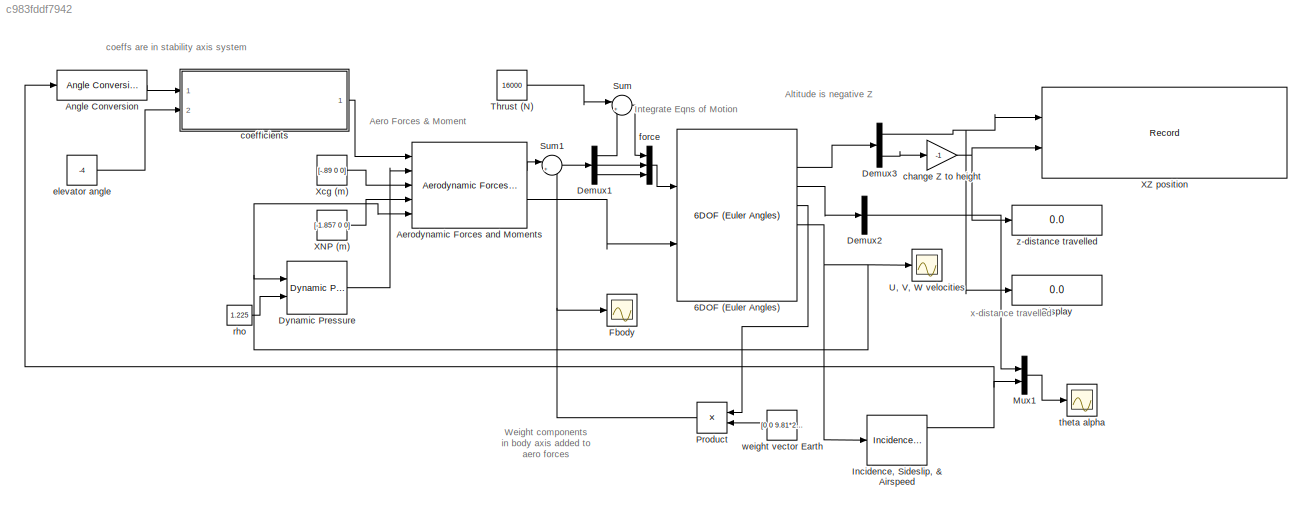
MODEL slx_c983fddf7942
KIND model
CONFIG AbsTol = auto
CONFIG EnableMultiTasking = on
CONFIG FixedStep = auto
CONFIG MaxStep = auto
CONFIG MinStep = auto
CONFIG RelTol = 1e-3
CONFIG SampleTimeConstraint = Unconstrained
CONFIG SolverName = VariableStepAuto
CONFIG StartTime = 0.0
CONFIG StopTime = 6000
BLOCK [Reference] 6DOF (Euler Angles)  REF=shared6dof/6DOF (Euler Angles)
  Ports = [2, 8]
  SourceBlock = shared6dof/6DOF (Euler Angles)
  SourceProductBaseCode = AE,PW,DR,MT,VE
  SourceType = 6DOF EoM (Body Axis)
BLOCK [Reference] Aerodynamic Forces and Moments   REF=aerolibadyn/Aerodynamic
Forces and Moments 
  Ports = [5, 2]
  SourceBlock = aerolibadyn/Aerodynamic\nForces and Moments
  SourceProductBaseCode = AE
  SourceType = Aerodynamic Forces and Moments
BLOCK [Reference] Angle Conversion  REF=aerolibconvert2/Angle Conversion
  Ports = [1, 1]
  SourceBlock = aerolibconvert2/Angle Conversion
  SourceProductBaseCode = AE
  SourceType = Angle Conversion
BLOCK [Demux] Demux1
  Outputs = 3
  Ports = [1, 3]
BLOCK [Demux] Demux2
  Outputs = 3
  Ports = [1, 3]
BLOCK [Demux] Demux3
  Outputs = 3
  Ports = [1, 3]
BLOCK [Display] Display
  Decimation = 1
  Ports = [1]
BLOCK [Reference] Dynamic Pressure  REF=aerolibasang/Dynamic Pressure
  Ports = [2, 1]
  SourceBlock = aerolibasang/Dynamic Pressure
  SourceProductBaseCode = AE
  SourceType = Dynamic Pressure
BLOCK [Scope] Fbody
  Floating = off
  NumInputPorts = 1
  Ports = [1]
  ScopeSpecificationString = Simulink.scopes.TimeScopeBlockCfg('CurrentConfiguration', extmgr.ConfigurationSet(extmgr.Configuration('Core','General UI',true),extmgr.Configuration('Core','Source UI',true),extmgr.Configuration('Sources','WiredSimulink',true,'DataLoggingVariableName','ScopeData2'),extmgr.Configuration('Visuals','Time Domain',true,'SerializedDisplays',{struct('MinYLimReal','-206061.89471','MaxYLimReal','317370.16...<+1465ch>
BLOCK [Reference] Incidence, Sideslip, & Airspeed  REF=aerolibasang/Incidence, Sideslip,
& Airspeed
  Ports = [1, 3]
  SourceBlock = aerolibasang/Incidence, Sideslip,\n& Airspeed
  SourceProductBaseCode = AE
  SourceType = Incidence,Sideslip,&Airspeed
BLOCK [Mux] Mux1
  DisplayOption = bar
  Inputs = 2
  Ports = [2, 1]
BLOCK [Product] Product
  Multiplication = Matrix(*)
  Ports = [2, 1]
BLOCK [Sum] Sum
  Inputs = |++
  Ports = [2, 1]
BLOCK [Sum] Sum1
  Inputs = |++
  Ports = [2, 1]
BLOCK [Constant] Thrust (N)
  Value = 16000
BLOCK [Scope] U, V, W velocities
  Floating = off
  NumInputPorts = 1
  Ports = [1]
  ScopeSpecificationString = Simulink.scopes.TimeScopeBlockCfg('CurrentConfiguration', extmgr.ConfigurationSet(extmgr.Configuration('Core','General UI',true),extmgr.Configuration('Core','Source UI',true),extmgr.Configuration('Sources','WiredSimulink',true),extmgr.Configuration('Visuals','Time Domain',true,'SerializedDisplays',{struct('MinYLimReal','-22.5','MaxYLimReal','202.5','YLabelReal','','MinYLimMag','0.00000','MaxYLimMa...<+1410ch>
BLOCK [Constant] XNP (m)
  Value = [-1.857 0 0]
BLOCK [Record] XZ position 
  CompatibilityTag = XY
  FileSettingsInternal = {"entries":[{"content":{"excelSettings":{"content":{},"type":"Streamout.ExcelSettings"}},"type":"Streamout.FileSettingStorage","uuid":"b9f9cbc5-7733-443a-ba1b-f2324a4208e9"}],"packageUris":["http://schema.mathworks.com/mf0/streamout_blocks/R2020a"],"version":"1.0"}
  Layout = [1 1]
  Ports = [2]
  SignalsInternal = {"entries":[{"content":{"signals":[{"content":{"blockPath":["THEGOODONEsim/XZ position "],"channel":[],"dimensions":[1],"domain":"THEGOODONEsim/XZ position ","lineColor":"#a2142f","plots":[1],"port":1,"sid":[""],"signalID":1283,"signalName":"Demux3:1"},"type":"RecordBlkView.Signal","uuid":"c77b9682-5010-4b01-8eab-2b3616e88310"},{"content":{"blockPath":["THEGOODONEsim/XZ position "],"channel":[],"d...<+413ch>
  VisualizationBindings = {"xyplotplugin":{"info":[{"series":[{"bindingParametersList":[{"parameter":"X-Axis","signalID":1283,"signalName":"Demux3:1"},{"parameter":"Y-Axis","signalID":1287,"signalName":"change Z \nto height"}],"seriesID":55724}],"subplotID":1}]}}
  st = -1
BLOCK [Constant] Xcg (m)
  Value = [-.89 0 0]
BLOCK [Gain] change Z to height
  Gain = -1
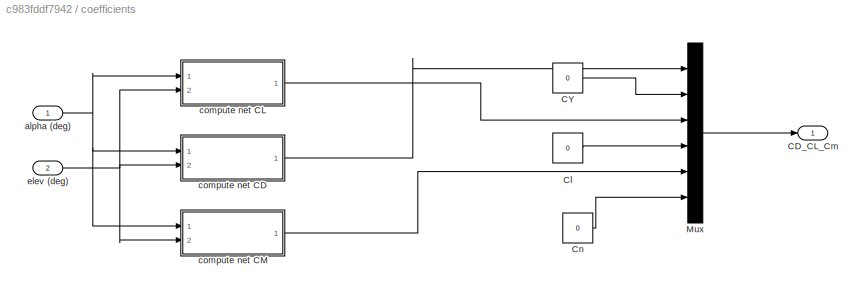
BLOCK [SubSystem] coefficients
  Ports = [2, 1]
  RequestExecContextInheritance = off
BLOCK [Outport] coefficients/CD_CL_Cm
BLOCK [Constant] coefficients/CY
  Value = 0
BLOCK [Constant] coefficients/Cl
  Value = 0
BLOCK [Constant] coefficients/Cn
  Value = 0
BLOCK [Mux] coefficients/Mux
  DisplayOption = bar
  Inputs = 6
  Ports = [6, 1]
BLOCK [Inport] coefficients/alpha (deg)
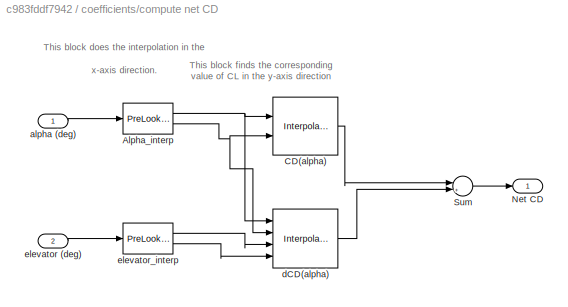
BLOCK [SubSystem] coefficients/compute net CD
  Ports = [2, 1]
  RequestExecContextInheritance = off
BLOCK [PreLookup] coefficients/compute net CD/Alpha_interp
  BeginIndexSearchUsingPreviousIndexResult = on
  BreakpointsData = alpha
  ExtrapMethod = Linear
  InputPortMap = u0
  Ports = [1, 2]
BLOCK [Interpolation_n-D] coefficients/compute net CD/CD(alpha)
  InputPortMap = u0,u1
  NumberOfTableDimensions = 1
  Ports = [2, 1]
  RemoveProtectionIndex = on
  Table = CD_datum
BLOCK [Outport] coefficients/compute net CD/Net CD
BLOCK [Sum] coefficients/compute net CD/Sum
  Inputs = |++
  Ports = [2, 1]
BLOCK [Inport] coefficients/compute net CD/alpha (deg)
BLOCK [Interpolation_n-D] coefficients/compute net CD/dCD(alpha)
  InputPortMap = u0,u1,u2,u3
  Ports = [4, 1]
  RemoveProtectionIndex = on
  Table = dCD_elev
BLOCK [Inport] coefficients/compute net CD/elevator (deg)
  Port = 2
BLOCK [PreLookup] coefficients/compute net CD/elevator_interp
  BeginIndexSearchUsingPreviousIndexResult = on
  BreakpointsData = delev
  ExtrapMethod = Linear
  InputPortMap = u0
  Ports = [1, 2]
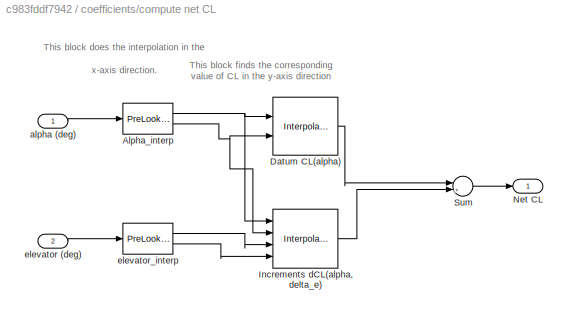
BLOCK [SubSystem] coefficients/compute net CL
  Ports = [2, 1]
  RequestExecContextInheritance = off
BLOCK [PreLookup] coefficients/compute net CL/Alpha_interp
  BeginIndexSearchUsingPreviousIndexResult = on
  BreakpointsData = alpha
  ExtrapMethod = Linear
  InputPortMap = u0
  Ports = [1, 2]
BLOCK [Interpolation_n-D] coefficients/compute net CL/Datum CL(alpha)
  InputPortMap = u0,u1
  NumberOfTableDimensions = 1
  Ports = [2, 1]
  RemoveProtectionIndex = on
  Table = CL_datum
BLOCK [Interpolation_n-D] coefficients/compute net CL/Increments dCL(alpha, delta_e)
  InputPortMap = u0,u1,u2,u3
  Ports = [4, 1]
  RemoveProtectionIndex = on
  Table = dCL_elev
BLOCK [Outport] coefficients/compute net CL/Net CL
BLOCK [Sum] coefficients/compute net CL/Sum
  Inputs = |++
  Ports = [2, 1]
BLOCK [Inport] coefficients/compute net CL/alpha (deg)
BLOCK [Inport] coefficients/compute net CL/elevator (deg)
  Port = 2
BLOCK [PreLookup] coefficients/compute net CL/elevator_interp
  BeginIndexSearchUsingPreviousIndexResult = on
  BreakpointsData = delev
  ExtrapMethod = Linear
  InputPortMap = u0
  Ports = [1, 2]
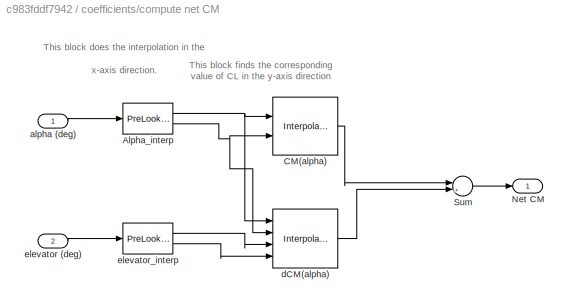
BLOCK [SubSystem] coefficients/compute net CM
  Ports = [2, 1]
  RequestExecContextInheritance = off
BLOCK [PreLookup] coefficients/compute net CM/Alpha_interp
  BeginIndexSearchUsingPreviousIndexResult = on
  BreakpointsData = alpha
  ExtrapMethod = Linear
  InputPortMap = u0
  Ports = [1, 2]
BLOCK [Interpolation_n-D] coefficients/compute net CM/CM(alpha)
  InputPortMap = u0,u1
  NumberOfTableDimensions = 1
  Ports = [2, 1]
  RemoveProtectionIndex = on
  Table = Cm_datum
BLOCK [Outport] coefficients/compute net CM/Net CM
BLOCK [Sum] coefficients/compute net CM/Sum
  Inputs = |++
  Ports = [2, 1]
BLOCK [Inport] coefficients/compute net CM/alpha (deg)
BLOCK [Interpolation_n-D] coefficients/compute net CM/dCM(alpha)
  InputPortMap = u0,u1,u2,u3
  Ports = [4, 1]
  RemoveProtectionIndex = on
  Table = dCm_elev
BLOCK [Inport] coefficients/compute net CM/elevator (deg)
  Port = 2
BLOCK [PreLookup] coefficients/compute net CM/elevator_interp
  BeginIndexSearchUsingPreviousIndexResult = on
  BreakpointsData = delev
  ExtrapMethod = Linear
  InputPortMap = u0
  Ports = [1, 2]
BLOCK [Inport] coefficients/elev (deg)
  Port = 2
BLOCK [Constant] elevator angle
  Value = -4
BLOCK [Mux] force
  DisplayOption = bar
  Inputs = 3
  Ports = [3, 1]
BLOCK [Constant] rho
  NameLocation = top
  Value = 1.225
BLOCK [Scope] theta alpha
  Floating = off
  NumInputPorts = 1
  Ports = [1]
  ScopeSpecificationString = Simulink.scopes.TimeScopeBlockCfg('CurrentConfiguration', extmgr.ConfigurationSet(extmgr.Configuration('Core','General UI',true),extmgr.Configuration('Core','Source UI',true),extmgr.Configuration('Sources','WiredSimulink',true,'DataLoggingVariableName','ScopeData1'),extmgr.Configuration('Visuals','Time Domain',true,'SerializedDisplays',{struct('MinYLimReal','-0.71261','MaxYLimReal','0.76667','YLab...<+1432ch>
BLOCK [Constant] weight vector Earth
  Value = [0 0 9.81*27016]
BLOCK [Display] z-distance travelled
  Decimation = 1
  Ports = [1]
ANNOTATION (root): coeffs are in stability axis system
ANNOTATION (root): Altitude is negative Z
ANNOTATION (root): Aero Forces & Moment
ANNOTATION (root): Integrate Eqns of Motion
ANNOTATION (root): Weight components in body axis added to aero forces
ANNOTATION (root): x-distance travelled
ANNOTATION coefficients/compute net CD: This block does the interpolation in the x-axis direction.
ANNOTATION coefficients/compute net CD: This block finds the corresponding value of CL in the y-axis direction
ANNOTATION coefficients/compute net CL: This block does the interpolation in the x-axis direction.
ANNOTATION coefficients/compute net CL: This block finds the corresponding value of CL in the y-axis direction
ANNOTATION coefficients/compute net CM: This block does the interpolation in the x-axis direction.
ANNOTATION coefficients/compute net CM: This block finds the corresponding value of CL in the y-axis direction
LINE 6DOF (Euler Angles):2 -> Demux3:1
LINE 6DOF (Euler Angles):3 -> Demux2:1
LINE 6DOF (Euler Angles):4 -> Product:1
NET 6DOF (Euler Angles):5 -> Aerodynamic Forces and Moments :5, Dynamic Pressure:1, Incidence, Sideslip, & Airspeed:1, U, V, W velocities:1
LINE Aerodynamic Forces and Moments :1 -> Sum1:1
LINE Aerodynamic Forces and Moments :2 -> 6DOF (Euler Angles):2
LINE Angle Conversion:1 -> coefficients:1
LINE Demux1:1 -> Sum:2
LINE Demux1:2 -> force:2
LINE Demux1:3 -> force:3
LINE Demux2:2 -> Mux1:1
NET Demux3:1 -> Display:1, XZ position :1
LINE Demux3:3 -> change Z to height:1
LINE Dynamic Pressure:1 -> Aerodynamic Forces and Moments :2
NET Incidence, Sideslip, & Airspeed:1 -> Angle Conversion:1, Mux1:2
LINE Mux1:1 -> theta alpha:1
NET Product:1 -> Fbody:1, Sum1:2
LINE Sum1:1 -> Demux1:1
LINE Sum:1 -> force:1
LINE Thrust (N):1 -> Sum:1
LINE XNP (m):1 -> Aerodynamic Forces and Moments :4
LINE Xcg (m):1 -> Aerodynamic Forces and Moments :3
NET change Z to height:1 -> XZ position :2, z-distance travelled:1
LINE coefficients/CY:1 -> coefficients/Mux:2
LINE coefficients/Cl:1 -> coefficients/Mux:4
LINE coefficients/Cn:1 -> coefficients/Mux:6
LINE coefficients/Mux:1 -> coefficients/CD_CL_Cm:1
NET coefficients/alpha (deg):1 -> coefficients/compute net CD:1, coefficients/compute net CL:1, coefficients/compute net CM:1
NET coefficients/compute net CD/Alpha_interp:1 -> coefficients/compute net CD/CD(alpha):1, coefficients/compute net CD/dCD(alpha):1
NET coefficients/compute net CD/Alpha_interp:2 -> coefficients/compute net CD/CD(alpha):2, coefficients/compute net CD/dCD(alpha):2
LINE coefficients/compute net CD/CD(alpha):1 -> coefficients/compute net CD/Sum:1
LINE coefficients/compute net CD/Sum:1 -> coefficients/compute net CD/Net CD:1
LINE coefficients/compute net CD/alpha (deg):1 -> coefficients/compute net CD/Alpha_interp:1
LINE coefficients/compute net CD/dCD(alpha):1 -> coefficients/compute net CD/Sum:2
LINE coefficients/compute net CD/elevator (deg):1 -> coefficients/compute net CD/elevator_interp:1
LINE coefficients/compute net CD/elevator_interp:1 -> coefficients/compute net CD/dCD(alpha):3
LINE coefficients/compute net CD/elevator_interp:2 -> coefficients/compute net CD/dCD(alpha):4
LINE coefficients/compute net CD:1 -> coefficients/Mux:1
NET coefficients/compute net CL/Alpha_interp:1 -> coefficients/compute net CL/Datum CL(alpha):1, coefficients/compute net CL/Increments dCL(alpha, delta_e):1
NET coefficients/compute net CL/Alpha_interp:2 -> coefficients/compute net CL/Datum CL(alpha):2, coefficients/compute net CL/Increments dCL(alpha, delta_e):2
LINE coefficients/compute net CL/Datum CL(alpha):1 -> coefficients/compute net CL/Sum:1
LINE coefficients/compute net CL/Increments dCL(alpha, delta_e):1 -> coefficients/compute net CL/Sum:2
LINE coefficients/compute net CL/Sum:1 -> coefficients/compute net CL/Net CL:1
LINE coefficients/compute net CL/alpha (deg):1 -> coefficients/compute net CL/Alpha_interp:1
LINE coefficients/compute net CL/elevator (deg):1 -> coefficients/compute net CL/elevator_interp:1
LINE coefficients/compute net CL/elevator_interp:1 -> coefficients/compute net CL/Increments dCL(alpha, delta_e):3
LINE coefficients/compute net CL/elevator_interp:2 -> coefficients/compute net CL/Increments dCL(alpha, delta_e):4
LINE coefficients/compute net CL:1 -> coefficients/Mux:3
NET coefficients/compute net CM/Alpha_interp:1 -> coefficients/compute net CM/CM(alpha):1, coefficients/compute net CM/dCM(alpha):1
NET coefficients/compute net CM/Alpha_interp:2 -> coefficients/compute net CM/CM(alpha):2, coefficients/compute net CM/dCM(alpha):2
LINE coefficients/compute net CM/CM(alpha):1 -> coefficients/compute net CM/Sum:1
LINE coefficients/compute net CM/Sum:1 -> coefficients/compute net CM/Net CM:1
LINE coefficients/compute net CM/alpha (deg):1 -> coefficients/compute net CM/Alpha_interp:1
LINE coefficients/compute net CM/dCM(alpha):1 -> coefficients/compute net CM/Sum:2
LINE coefficients/compute net CM/elevator (deg):1 -> coefficients/compute net CM/elevator_interp:1
LINE coefficients/compute net CM/elevator_interp:1 -> coefficients/compute net CM/dCM(alpha):3
LINE coefficients/compute net CM/elevator_interp:2 -> coefficients/compute net CM/dCM(alpha):4
LINE coefficients/compute net CM:1 -> coefficients/Mux:5
NET coefficients/elev (deg):1 -> coefficients/compute net CD:2, coefficients/compute net CL:2, coefficients/compute net CM:2
LINE coefficients:1 -> Aerodynamic Forces and Moments :1
LINE elevator angle:1 -> coefficients:2
LINE force:1 -> 6DOF (Euler Angles):1
LINE rho:1 -> Dynamic Pressure:2
LINE weight vector Earth:1 -> Product:2
note: NET lines group one-source signal fan-out (src -> all destinations, sorted); 1:1 wires keep LINE
